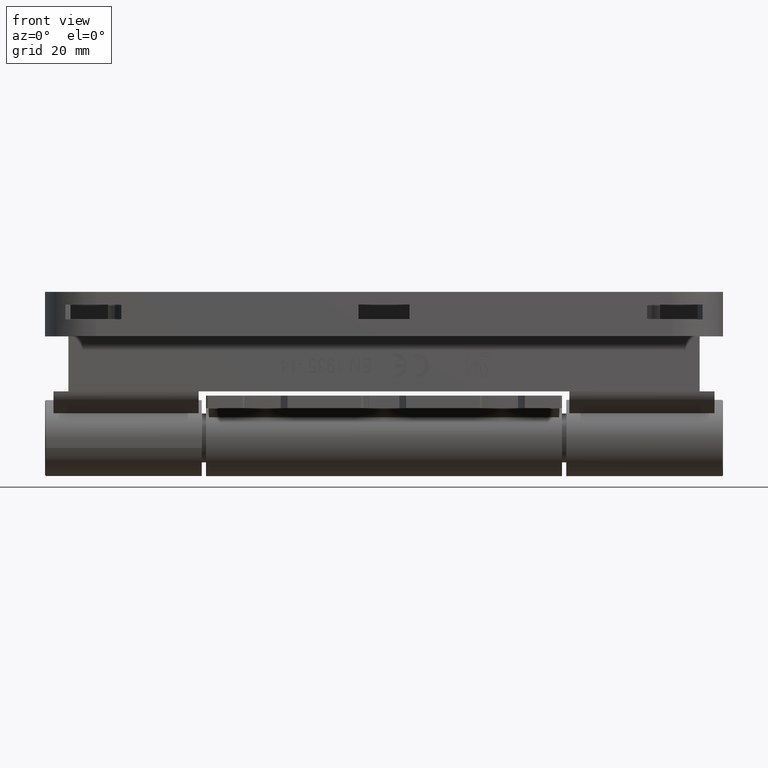
[diagram: clean part render]
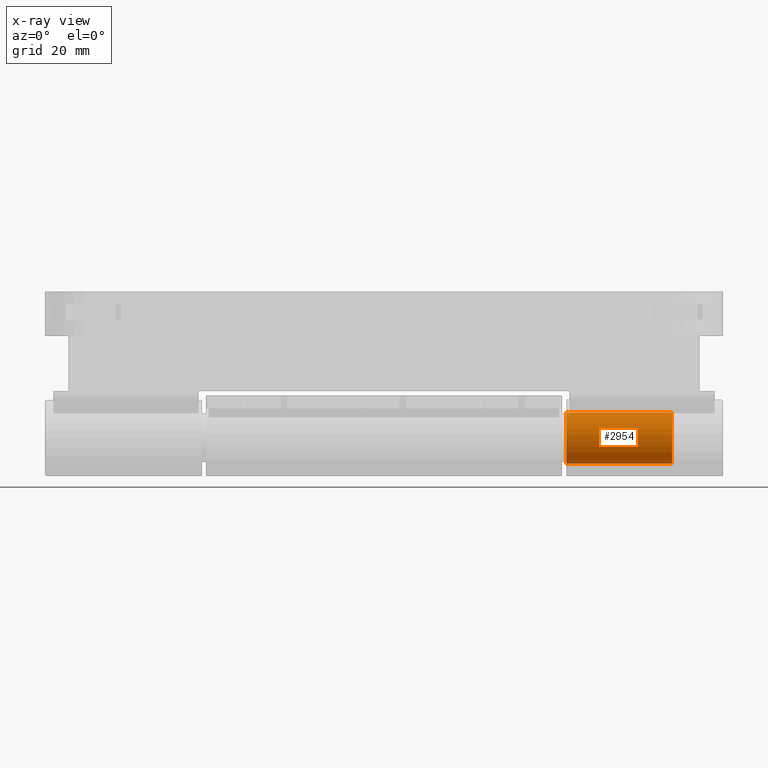
[diagram: x-ray — body ghosted, one internal face saturated and labeled with its STEP entity id]
A machine part, front view, then the same camera in x-ray: the body is ghosted and one INTERNAL B-rep face — a face not visible from any outside direction — is saturated and labeled: STEP entity #2954.
In plain terms, the highlighted cylindrical surface (edge-blend (fillet) strip) has radius 6 mm, axis along (-1, -0, -0).
Its self-contained STEP definition (entity closure, byte-faithful):
#437 = DIRECTION ( 'NONE',  ( -1.000000000000000000, -1.638430706203969032E-16, -2.142810957151866739E-16 ) ) ;
#1412 = VECTOR ( 'NONE', #16727, 1000.000000000000000 ) ;
#1753 = CARTESIAN_POINT ( 'NONE',  ( 24.99999999999999289, 6.938893903907226800E-15, 9.540979117872442175E-15 ) ) ;
#2003 = LINE ( 'NONE', #3520, #1412 ) ;
#2062 = CARTESIAN_POINT ( 'NONE',  ( 0.000000000000000000, 0.000000000000000000, 0.000000000000000000 ) ) ;
#2163 = VERTEX_POINT ( 'NONE', #11030 ) ;
#2430 = ORIENTED_EDGE ( 'NONE', *, *, #14334, .F. ) ;
#2897 = CIRCLE ( 'NONE', #3954, 6.000000000000007105 ) ;
#2954 = ADVANCED_FACE ( 'NONE', ( #6184 ), #12785, .F. ) ;
#2981 = CARTESIAN_POINT ( 'NONE',  ( 1.285686574291119156E-15, 5.543722065330474841E-15, -6.000000000000000000 ) ) ;
#3183 = EDGE_CURVE ( 'NONE', #9822, #13514, #7004, .T. ) ;
#3499 = EDGE_LOOP ( 'NONE', ( #12794, #12533, #16399, #2430 ) ) ;
#3520 = CARTESIAN_POINT ( 'NONE',  ( 25.49999999999999645, 6.938893903907226800E-15, 6.000000000000009770 ) ) ;
#3532 = CARTESIAN_POINT ( 'NONE',  ( 25.49999999999999645, 7.673681983395640844E-15, -6.000000000000004441 ) ) ;
#3954 = AXIS2_PLACEMENT_3D ( 'NONE', #2062, #437, #13654 ) ;
#4110 = CARTESIAN_POINT ( 'NONE',  ( 24.99999999999999289, 7.673681983395640844E-15, -5.999999999999996447 ) ) ;
#4563 = AXIS2_PLACEMENT_3D ( 'NONE', #1753, #13042, #4819 ) ;
#4570 = DIRECTION ( 'NONE',  ( 0.000000000000000000, 0.000000000000000000, 1.000000000000000000 ) ) ;
#4819 = DIRECTION ( 'NONE',  ( 0.000000000000000000, 0.000000000000000000, 1.000000000000000000 ) ) ;
#6152 = VERTEX_POINT ( 'NONE', #11093 ) ;
#6184 = FACE_OUTER_BOUND ( 'NONE', #3499, .T. ) ;
#6405 = CARTESIAN_POINT ( 'NONE',  ( 25.49999999999999645, 6.938893903907226800E-15, 2.602085213965211430E-15 ) ) ;
#7004 = LINE ( 'NONE', #3532, #13276 ) ;
#7947 = EDGE_CURVE ( 'NONE', #13514, #6152, #2897, .T. ) ;
#9822 = VERTEX_POINT ( 'NONE', #4110 ) ;
#10022 = DIRECTION ( 'NONE',  ( -1.000000000000000000, -1.638430706203969032E-16, -2.142810957151866739E-16 ) ) ;
#11030 = CARTESIAN_POINT ( 'NONE',  ( 24.99999999999999289, 6.938893903907226800E-15, 6.000000000000017764 ) ) ;
#11093 = CARTESIAN_POINT ( 'NONE',  ( 1.285686574291120931E-15, 0.000000000000000000, 6.000000000000007105 ) ) ;
#12533 = ORIENTED_EDGE ( 'NONE', *, *, #3183, .T. ) ;
#12785 = CYLINDRICAL_SURFACE ( 'NONE', #14662, 6.000000000000007105 ) ;
#12794 = ORIENTED_EDGE ( 'NONE', *, *, #15341, .F. ) ;
#13042 = DIRECTION ( 'NONE',  ( -1.000000000000000000, -1.638430706203969032E-16, -2.142810957151866739E-16 ) ) ;
#13276 = VECTOR ( 'NONE', #10022, 1000.000000000000000 ) ;
#13514 = VERTEX_POINT ( 'NONE', #2981 ) ;
#13654 = DIRECTION ( 'NONE',  ( 2.142810957151865753E-16, 0.000000000000000000, 1.000000000000000000 ) ) ;
#14334 = EDGE_CURVE ( 'NONE', #2163, #6152, #2003, .T. ) ;
#14662 = AXIS2_PLACEMENT_3D ( 'NONE', #6405, #19381, #4570 ) ;
#15341 = EDGE_CURVE ( 'NONE', #9822, #2163, #16303, .T. ) ;
#16303 = CIRCLE ( 'NONE', #4563, 6.000000000000007105 ) ;
#16399 = ORIENTED_EDGE ( 'NONE', *, *, #7947, .T. ) ;
#16727 = DIRECTION ( 'NONE',  ( -1.000000000000000000, -1.638430706203969032E-16, -2.142810957151866739E-16 ) ) ;
#19381 = DIRECTION ( 'NONE',  ( -1.000000000000000000, -1.638430706203969032E-16, -2.142810957151866739E-16 ) ) ;